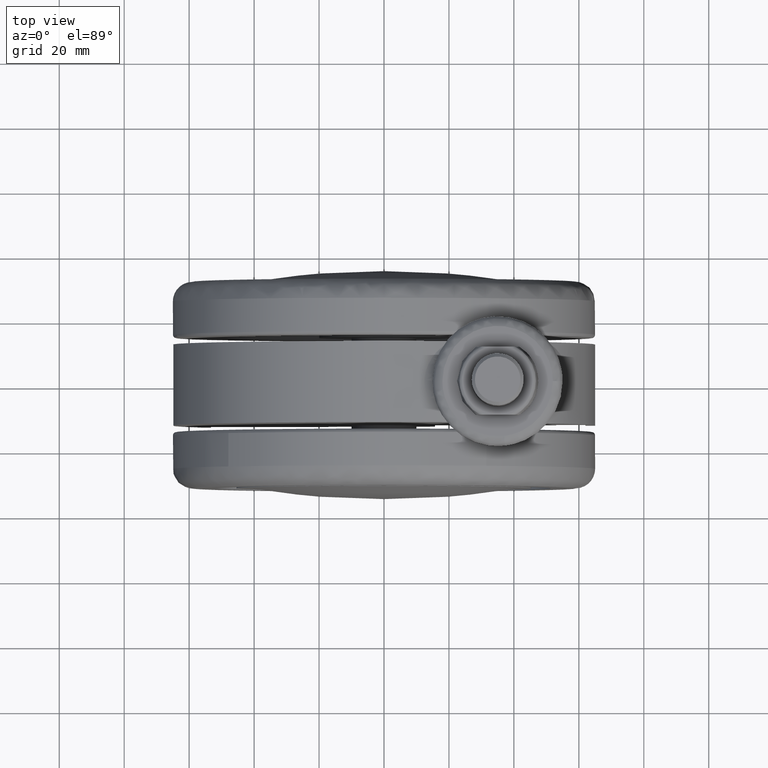
[diagram: clean part render]
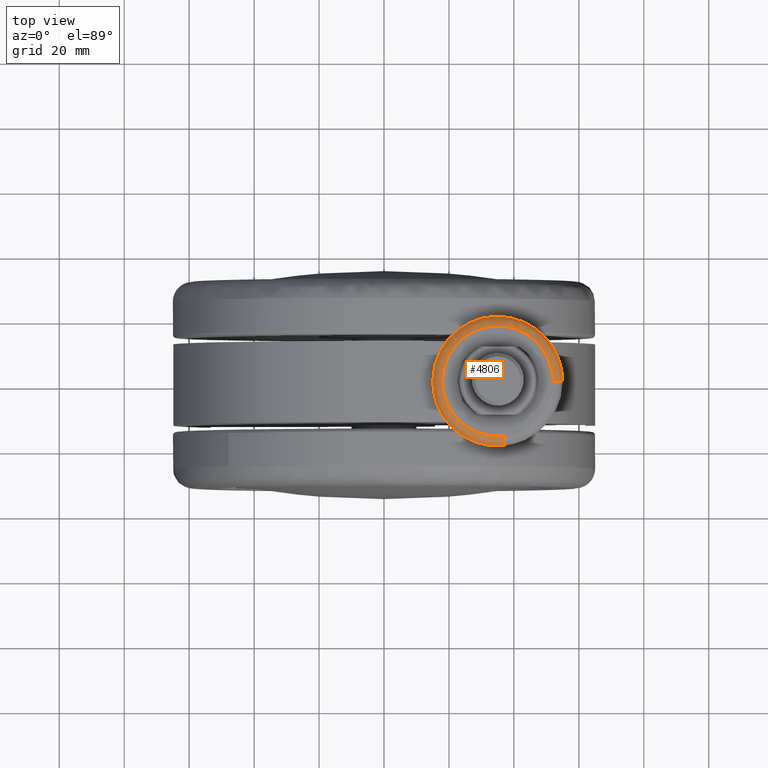
[diagram: same view with one face highlighted and labeled with its STEP entity id]
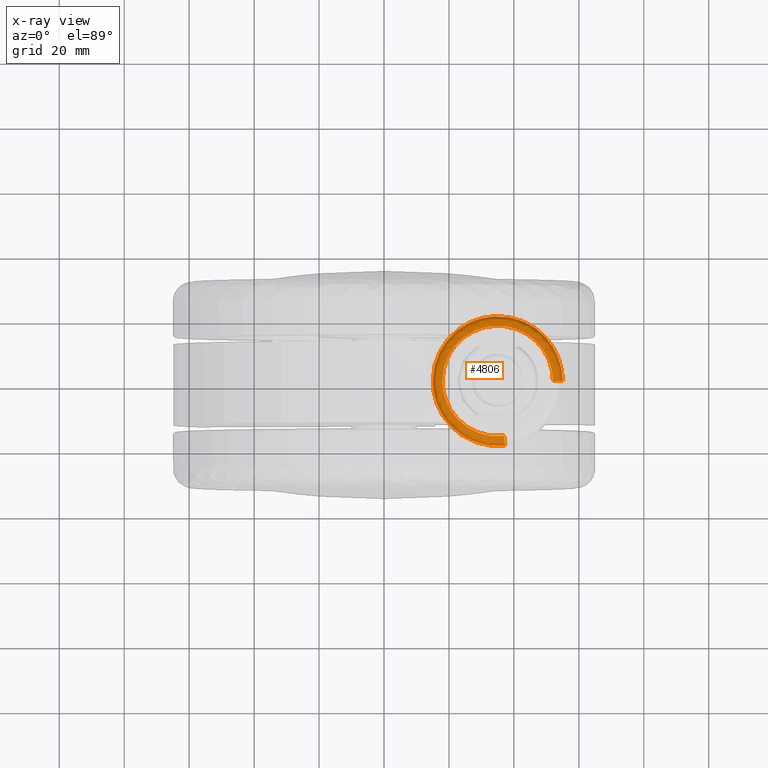
[diagram: x-ray of the same camera — body ghosted, the highlighted face saturated]
A machine part, top view. The second image highlights one B-rep face of the part: STEP entity #4806.
The next image is the same camera in x-ray: the body ghosted, the highlighted face saturated — about 0% of this face is hidden behind the body in this view.
In plain terms, the highlighted face is a freeform B-spline surface patch.
Its self-contained STEP definition (entity closure, byte-faithful):
#4056=CARTESIAN_POINT('',(53.722872539412492,7.032356921609274,69.000000000149015));
#4057=VERTEX_POINT('',#4056);
#4058=CARTESIAN_POINT('',(55.0,8.851079E-016,69.000000000229434));
#4059=VERTEX_POINT('',#4058);
#4060=CARTESIAN_POINT('',(53.722872539412492,7.032356921609274,69.000000000149029));
#4061=CARTESIAN_POINT('',(55.0,3.632146305495137,69.000000000187768));
#4062=CARTESIAN_POINT('',(55.0,8.851079E-016,69.000000000229434));
#4070=(BOUNDED_CURVE()B_SPLINE_CURVE(2,(#4060,#4061,#4062),.UNSPECIFIED.,.F.,.U.)B_SPLINE_CURVE_WITH_KNOTS((3,3),(0.440284192548073,0.500000000000000),.UNSPECIFIED.)CURVE()GEOMETRIC_REPRESENTATION_ITEM()RATIONAL_B_SPLINE_CURVE((0.893499581129208,0.930038579765443,1.0))REPRESENTATION_ITEM(''));
#4071=EDGE_CURVE('',#4057,#4059,#4070,.T.);
#4073=CARTESIAN_POINT('',(37.309284586746699,-19.866232775677780,69.000000000274383));
#4074=VERTEX_POINT('',#4073);
#4088=CARTESIAN_POINT('',(15.0,0.0,69.0));
#4089=VERTEX_POINT('',#4088);
#4090=CARTESIAN_POINT('',(37.309284586746699,-19.866232775677780,69.000000000274383));
#4091=CARTESIAN_POINT('',(36.158516582164857,-19.999999999999993,69.0));
#4092=CARTESIAN_POINT('',(35.0,-20.0,69.0));
#4093=CARTESIAN_POINT('',(15.000000000000009,-19.999999999999996,69.0));
#4094=CARTESIAN_POINT('',(15.0,0.0,69.0));
#4102=(BOUNDED_CURVE()B_SPLINE_CURVE(2,(#4090,#4091,#4092,#4093,#4094),.UNSPECIFIED.,.F.,.U.)B_SPLINE_CURVE_WITH_KNOTS((3,2,3),(0.729999999996505,0.750000000000000,1.0),.UNSPECIFIED.)CURVE()GEOMETRIC_REPRESENTATION_ITEM()RATIONAL_B_SPLINE_CURVE((0.956886118183781,0.976568542490829,1.0,0.707106781186548,1.0))REPRESENTATION_ITEM(''));
#4103=EDGE_CURVE('',#4074,#4089,#4102,.T.);
#4105=CARTESIAN_POINT('',(33.779029209106682,19.962695968425340,69.0));
#4106=VERTEX_POINT('',#4105);
#4107=CARTESIAN_POINT('',(15.0,0.0,69.0));
#4108=CARTESIAN_POINT('',(15.000000000000009,18.814121337743430,69.0));
#4109=CARTESIAN_POINT('',(33.779029209106682,19.962695968425336,69.0));
#4117=(BOUNDED_CURVE()B_SPLINE_CURVE(2,(#4107,#4108,#4109),.UNSPECIFIED.,.F.,.U.)B_SPLINE_CURVE_WITH_KNOTS((3,3),(0.0,0.239332962238577),.UNSPECIFIED.)CURVE()GEOMETRIC_REPRESENTATION_ITEM()RATIONAL_B_SPLINE_CURVE((1.0,0.719603993287139,0.976072041665934))REPRESENTATION_ITEM(''));
#4118=EDGE_CURVE('',#4089,#4106,#4117,.T.);
#4196=CARTESIAN_POINT('',(33.779029209106682,19.962695968425340,69.0));
#4197=CARTESIAN_POINT('',(34.388944733831494,20.000000000000007,69.0));
#4198=CARTESIAN_POINT('',(35.0,20.0,69.0));
#4199=CARTESIAN_POINT('',(48.852193942027945,19.999999999999996,69.0));
#4200=CARTESIAN_POINT('',(53.722872539412492,7.032356921609274,69.000000000149029));
#4208=(BOUNDED_CURVE()B_SPLINE_CURVE(2,(#4196,#4197,#4198,#4199,#4200),.UNSPECIFIED.,.F.,.U.)B_SPLINE_CURVE_WITH_KNOTS((3,2,3),(0.239332962238577,0.250000000000000,0.440284192548073),.UNSPECIFIED.)CURVE()GEOMETRIC_REPRESENTATION_ITEM()RATIONAL_B_SPLINE_CURVE((0.976072041665933,0.987502787899409,1.0,0.777068201421104,0.893499581129208))REPRESENTATION_ITEM(''));
#4209=EDGE_CURVE('',#4106,#4057,#4208,.T.);
#4703=CARTESIAN_POINT('',(36.938867404485258,-16.679637179199826,71.992777002546205));
#4704=CARTESIAN_POINT('',(35.972686535359401,-16.791947571437941,71.992777002546191));
#4705=CARTESIAN_POINT('',(34.999999999999993,-16.791947571437944,71.992777002546191));
#4706=CARTESIAN_POINT('',(18.208052428562066,-16.791947571437948,71.992777002546205));
#4707=CARTESIAN_POINT('',(18.208052428562056,-3.084529E-015,71.992777002546191));
#4708=CARTESIAN_POINT('',(18.208052428562066,16.791947571437934,71.992777002546205));
#4709=CARTESIAN_POINT('',(34.999999999999993,16.791947571437944,71.992777002546191));
#4710=CARTESIAN_POINT('',(51.791947571437930,16.791947571437948,71.992777002546205));
#4711=CARTESIAN_POINT('',(51.791947571437937,5.140881E-015,71.992777002546191));
#4712=CARTESIAN_POINT('',(37.336210646801575,-20.097891105234726,72.232007874418741));
#4713=CARTESIAN_POINT('',(36.172024778306316,-20.233217911743601,72.232007874418727));
#4714=CARTESIAN_POINT('',(35.000000000000007,-20.233217911743601,72.232007874418727));
#4715=CARTESIAN_POINT('',(14.766782088256415,-20.233217911743601,72.232007874418727));
#4716=CARTESIAN_POINT('',(14.766782088256406,-3.716659E-015,72.232007874418727));
#4717=CARTESIAN_POINT('',(14.766782088256406,20.233217911743587,72.232007874418727));
#4718=CARTESIAN_POINT('',(34.999999999999986,20.233217911743601,72.232007874418727));
#4719=CARTESIAN_POINT('',(55.233217911743594,20.233217911743601,72.232007874418727));
#4720=CARTESIAN_POINT('',(55.233217911743601,6.194432E-015,72.232007874418727));
#4721=CARTESIAN_POINT('',(37.308439333065586,-19.858980782623480,68.790827324519128));
#4722=CARTESIAN_POINT('',(36.158092529572961,-19.992698914330028,68.790827324519100));
#4723=CARTESIAN_POINT('',(35.000000000000007,-19.992698914330035,68.790827324519100));
#4724=CARTESIAN_POINT('',(15.007301085669978,-19.992698914330045,68.790827324519086));
#4725=CARTESIAN_POINT('',(15.007301085669971,-3.672478E-015,68.790827324519100));
#4726=CARTESIAN_POINT('',(15.007301085669967,19.992698914330028,68.790827324519086));
#4727=CARTESIAN_POINT('',(34.999999999999993,19.992698914330035,68.790827324519100));
#4728=CARTESIAN_POINT('',(54.992698914330013,19.992698914330045,68.790827324519086));
#4729=CARTESIAN_POINT('',(54.992698914330028,6.120797E-015,68.790827324519100));
#4737=(BOUNDED_SURFACE()B_SPLINE_SURFACE(2,2,((#4703,#4712,#4721),(#4704,#4713,#4722),(#4705,#4714,#4723),(#4706,#4715,#4724),(#4707,#4716,#4725),(#4708,#4717,#4726),(#4709,#4718,#4727),(#4710,#4719,#4728),(#4711,#4720,#4729)),.UNSPECIFIED.,.F.,.F.,.U.)B_SPLINE_SURFACE_WITH_KNOTS((3,2,2,2,3),(3,3),(0.0,2.649996525166318,35.774984680195722,68.899972835225128,102.024960990254500),(0.0,5.467111977675706),.UNSPECIFIED.)GEOMETRIC_REPRESENTATION_ITEM()RATIONAL_B_SPLINE_SURFACE(((0.876475874065725,0.573569883320356,0.871620861004611),(0.894504305791055,0.585367772785560,0.889549428861364),(0.915966720612989,0.599412876740432,0.910892958147065),(0.647686279486648,0.423848909873695,0.644098587640864),(0.915966720612989,0.599412876740432,0.910892958147065),(0.647686279486648,0.423848909873695,0.644098587640864),(0.915966720612989,0.599412876740432,0.910892958147065),(0.647686279486648,0.423848909873695,0.644098587640864),(0.915966720612989,0.599412876740432,0.910892958147065)))REPRESENTATION_ITEM('')SURFACE());
#4738=ORIENTED_EDGE('',*,*,#4103,.F.);
#4739=CARTESIAN_POINT('',(36.962891899957746,-16.886297867111910,72.0));
#4740=VERTEX_POINT('',#4739);
#4741=CARTESIAN_POINT('',(36.962891899957754,-16.886297867111921,72.0));
#4742=CARTESIAN_POINT('',(37.309284586478107,-19.866232775156526,71.999999984250962));
#4743=CARTESIAN_POINT('',(37.309284586746699,-19.866232775677783,69.000000000274383));
#4751=(BOUNDED_CURVE()B_SPLINE_CURVE(2,(#4741,#4742,#4743),.UNSPECIFIED.,.F.,.U.)B_SPLINE_CURVE_WITH_KNOTS((3,3),(-1.736413115638944,-0.276558718203573),.UNSPECIFIED.)CURVE()GEOMETRIC_REPRESENTATION_ITEM()RATIONAL_B_SPLINE_CURVE((0.850203274434652,0.599621900162769,0.845789311833966))REPRESENTATION_ITEM(''));
#4752=EDGE_CURVE('',#4740,#4074,#4751,.T.);
#4753=ORIENTED_EDGE('',*,*,#4752,.F.);
#4754=CARTESIAN_POINT('',(17.999999999999151,0.0,72.0));
#4755=VERTEX_POINT('',#4754);
#4756=CARTESIAN_POINT('',(36.962891899957754,-16.886297867111914,72.0));
#4757=CARTESIAN_POINT('',(35.984739095157117,-17.000000000000849,72.0));
#4758=CARTESIAN_POINT('',(35.0,-17.000000000000849,72.0));
#4759=CARTESIAN_POINT('',(17.999999999999158,-17.000000000000849,72.0));
#4760=CARTESIAN_POINT('',(17.999999999999151,0.0,72.0));
#4768=(BOUNDED_CURVE()B_SPLINE_CURVE(2,(#4756,#4757,#4758,#4759,#4760),.UNSPECIFIED.,.F.,.U.)B_SPLINE_CURVE_WITH_KNOTS((3,2,3),(0.729999999990219,0.750000000000000,1.0),.UNSPECIFIED.)CURVE()GEOMETRIC_REPRESENTATION_ITEM()RATIONAL_B_SPLINE_CURVE((0.956886118171408,0.976568542483464,1.0,0.707106781186548,1.0))REPRESENTATION_ITEM(''));
#4769=EDGE_CURVE('',#4740,#4755,#4768,.T.);
#4770=ORIENTED_EDGE('',*,*,#4769,.T.);
#4771=CARTESIAN_POINT('',(52.000000000730900,4.426226E-016,72.0));
#4772=VERTEX_POINT('',#4771);
#4773=CARTESIAN_POINT('',(17.999999999999151,0.0,72.0));
#4774=CARTESIAN_POINT('',(17.999999999999158,17.000000000000849,72.0));
#4775=CARTESIAN_POINT('',(35.0,17.000000000000849,72.0));
#4776=CARTESIAN_POINT('',(52.000000000000838,17.000000000000849,72.0));
#4777=CARTESIAN_POINT('',(52.000000000730900,4.426226E-016,72.0));
#4785=(BOUNDED_CURVE()B_SPLINE_CURVE(2,(#4773,#4774,#4775,#4776,#4777),.UNSPECIFIED.,.F.,.U.)B_SPLINE_CURVE_WITH_KNOTS((3,2,3),(0.0,0.250000000000000,0.500000000000000),.UNSPECIFIED.)CURVE()GEOMETRIC_REPRESENTATION_ITEM()RATIONAL_B_SPLINE_CURVE((1.0,0.707106781186548,1.0,0.707106781186548,1.0))REPRESENTATION_ITEM(''));
#4786=EDGE_CURVE('',#4755,#4772,#4785,.T.);
#4787=ORIENTED_EDGE('',*,*,#4786,.T.);
#4788=CARTESIAN_POINT('',(52.000000000730900,4.426226E-016,72.0));
#4789=CARTESIAN_POINT('',(54.999999999541124,1.748501E-015,71.999999997078945));
#4790=CARTESIAN_POINT('',(55.0,8.851079E-016,69.000000000229448));
#4798=(BOUNDED_CURVE()B_SPLINE_CURVE(2,(#4788,#4789,#4790),.UNSPECIFIED.,.F.,.U.)B_SPLINE_CURVE_WITH_KNOTS((3,3),(-1.736413120064444,-0.276558718172708),.UNSPECIFIED.)CURVE()GEOMETRIC_REPRESENTATION_ITEM()RATIONAL_B_SPLINE_CURVE((0.888510408701014,0.626638727443372,0.883897567083163))REPRESENTATION_ITEM(''));
#4799=EDGE_CURVE('',#4772,#4059,#4798,.T.);
#4800=ORIENTED_EDGE('',*,*,#4799,.T.);
#4801=ORIENTED_EDGE('',*,*,#4071,.F.);
#4802=ORIENTED_EDGE('',*,*,#4209,.F.);
#4803=ORIENTED_EDGE('',*,*,#4118,.F.);
#4804=EDGE_LOOP('',(#4738,#4753,#4770,#4787,#4800,#4801,#4802,#4803));
#4805=FACE_OUTER_BOUND('',#4804,.T.);
#4806=ADVANCED_FACE('',(#4805),#4737,.T.);